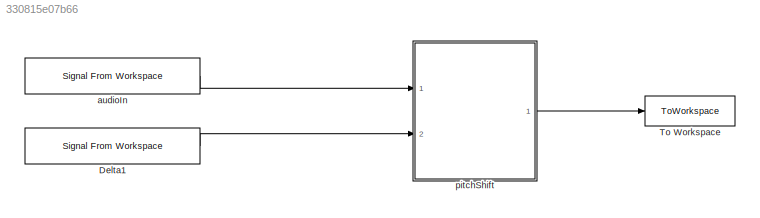
MODEL slx_330815e07b66
KIND model
CONFIG AbsTol = auto
CONFIG EnableMultiTasking = off
CONFIG FixedStep = auto
CONFIG InitFcn = initCallback
CONFIG MaxStep = auto
CONFIG MinStep = auto
CONFIG PostLoadFcn = postLoadCallback
CONFIG RelTol = 1e-3
CONFIG SampleTimeConstraint = Unconstrained
CONFIG SolverName = VariableStepAuto
CONFIG StartTime = 0.0
CONFIG StopFcn = stopCallback
CONFIG StopTime = 3
BLOCK [Reference] Delta1  REF=dspsrcs4/Signal From
Workspace
  Ports = [0, 1]
  SourceBlock = dspsrcs4/Signal From\nWorkspace
  SourceProductBaseCode = DS
  SourceType = Signal From Workspace
BLOCK [ToWorkspace] To Workspace
  FixptAsFi = on
  MaxDataPoints = inf
  Ports = [1]
  SampleTime = -1
  VariableName = AudioOut
BLOCK [Reference] audioIn  REF=dspsrcs4/Signal From
Workspace
  Ports = [0, 1]
  SourceBlock = dspsrcs4/Signal From\nWorkspace
  SourceProductBaseCode = DS
  SourceType = Signal From Workspace
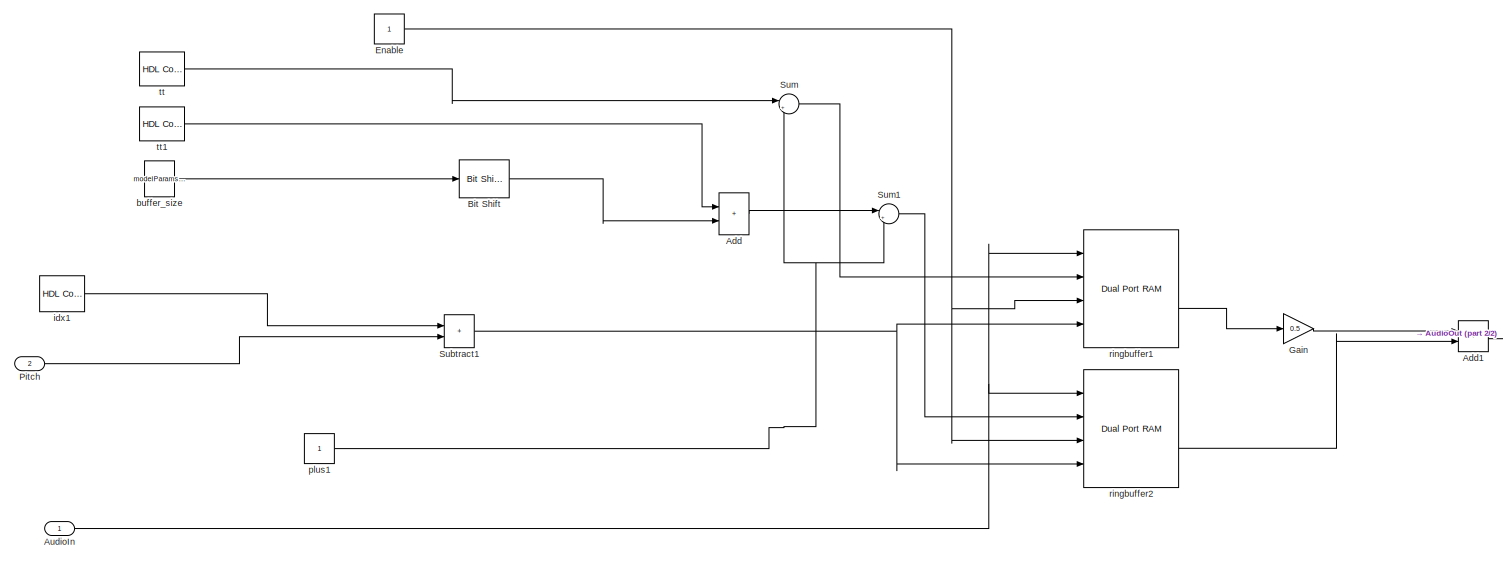
[diagram: pitchShift - part 1/2, most of the canvas]
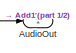
[diagram: pitchShift - part 2/2, middle right region]
BLOCK [SubSystem] pitchShift
  Ports = [2, 1]
  RequestExecContextInheritance = off
BLOCK [Sum] pitchShift/Add
  IconShape = rectangular
  Ports = [2, 1]
  SampleTime = modelParams.audio.samplePeriod
BLOCK [Sum] pitchShift/Add1
  AccumDataTypeStr = Inherit: Same as first input
  IconShape = rectangular
  OutDataTypeStr = fixdt(1,24,16)
  Ports = [2, 1]
  SampleTime = modelParams.audio.samplePeriod
BLOCK [Inport] pitchShift/AudioIn
  SampleTime = modelParams.audio.samplePeriod
BLOCK [Outport] pitchShift/AudioOut
BLOCK [Reference] pitchShift/Bit Shift  REF=hdlsllib/Logic and Bit
Operations/Bit Shift
  Ports = [1, 1]
  SourceBlock = hdlsllib/Logic and Bit\nOperations/Bit Shift
  SourceProductBaseCode = SL
  SourceType = Bit Shift
BLOCK [Constant] pitchShift/Enable
  OutDataTypeStr = boolean
  SampleTime = modelParams.audio.samplePeriod
BLOCK [Gain] pitchShift/Gain
  Gain = 0.5
  SampleTime = modelParams.audio.samplePeriod
BLOCK [Inport] pitchShift/Pitch
  Port = 2
  SampleTime = modelParams.audio.samplePeriod
BLOCK [Sum] pitchShift/Subtract1
  AccumDataTypeStr = Inherit: Same as first input
  IconShape = rectangular
  OutDataTypeStr = Inherit: Inherit via back propagation
  Ports = [2, 1]
  RndMeth = Round
  SampleTime = modelParams.audio.samplePeriod
BLOCK [Sum] pitchShift/Sum
  AccumDataTypeStr = Inherit: Same as first input
  Inputs = |++
  OutDataTypeStr = uint16
  Ports = [2, 1]
  SampleTime = modelParams.audio.samplePeriod
BLOCK [Sum] pitchShift/Sum1
  AccumDataTypeStr = Inherit: Same as first input
  Inputs = |++
  OutDataTypeStr = uint16
  Ports = [2, 1]
  SampleTime = modelParams.audio.samplePeriod
BLOCK [Constant] pitchShift/buffer_size
  SampleTime = modelParams.audio.samplePeriod
  Value = modelParams.buffer_size
BLOCK [Reference] pitchShift/idx1  REF=hdlsllib/Sources/HDL Counter
  Ports = [0, 1]
  SourceBlock = hdlsllib/Sources/HDL Counter
  SourceProductBaseCode = SL
  SourceType = HDL Counter
BLOCK [Constant] pitchShift/plus1
  OutDataTypeStr = Inherit: Inherit via back propagation
  SampleTime = modelParams.audio.samplePeriod
BLOCK [Reference] pitchShift/ringbuffer1  REF=hdlsllib/HDL RAMs/Dual Port RAM
  Ports = [4, 2]
  SourceBlock = hdlsllib/HDL RAMs/Dual Port RAM
  SourceProductBaseCode = SL
  SourceType = Dual-port RAM
BLOCK [Reference] pitchShift/ringbuffer2  REF=hdlsllib/HDL RAMs/Dual Port RAM
  Ports = [4, 2]
  SourceBlock = hdlsllib/HDL RAMs/Dual Port RAM
  SourceProductBaseCode = SL
  SourceType = Dual-port RAM
BLOCK [Reference] pitchShift/tt  REF=hdlsllib/Sources/HDL Counter
  Ports = [0, 1]
  SourceBlock = hdlsllib/Sources/HDL Counter
  SourceProductBaseCode = SL
  SourceType = HDL Counter
BLOCK [Reference] pitchShift/tt1  REF=hdlsllib/Sources/HDL Counter
  Ports = [0, 1]
  SourceBlock = hdlsllib/Sources/HDL Counter
  SourceProductBaseCode = SL
  SourceType = HDL Counter
LINE Delta1:1 -> pitchShift:2
LINE audioIn:1 -> pitchShift:1
LINE pitchShift/Add1:1 -> pitchShift/AudioOut:1
LINE pitchShift/Add:1 -> pitchShift/Sum1:1
NET pitchShift/AudioIn:1 -> pitchShift/ringbuffer1:1, pitchShift/ringbuffer2:1
LINE pitchShift/Bit Shift:1 -> pitchShift/Add:2
NET pitchShift/Enable:1 -> pitchShift/ringbuffer1:3, pitchShift/ringbuffer2:3
LINE pitchShift/Gain:1 -> pitchShift/Add1:1
LINE pitchShift/Pitch:1 -> pitchShift/Subtract1:2
NET pitchShift/Subtract1:1 -> pitchShift/ringbuffer1:4, pitchShift/ringbuffer2:4
LINE pitchShift/Sum1:1 -> pitchShift/ringbuffer2:2
LINE pitchShift/Sum:1 -> pitchShift/ringbuffer1:2
LINE pitchShift/buffer_size:1 -> pitchShift/Bit Shift:1
LINE pitchShift/idx1:1 -> pitchShift/Subtract1:1
NET pitchShift/plus1:1 -> pitchShift/Sum1:2, pitchShift/Sum:2
LINE pitchShift/ringbuffer1:2 -> pitchShift/Gain:1
LINE pitchShift/ringbuffer2:2 -> pitchShift/Add1:2
LINE pitchShift/tt1:1 -> pitchShift/Add:1
LINE pitchShift/tt:1 -> pitchShift/Sum:1
LINE pitchShift:1 -> To Workspace:1
note: NET lines group one-source signal fan-out (src -> all destinations, sorted); 1:1 wires keep LINE
